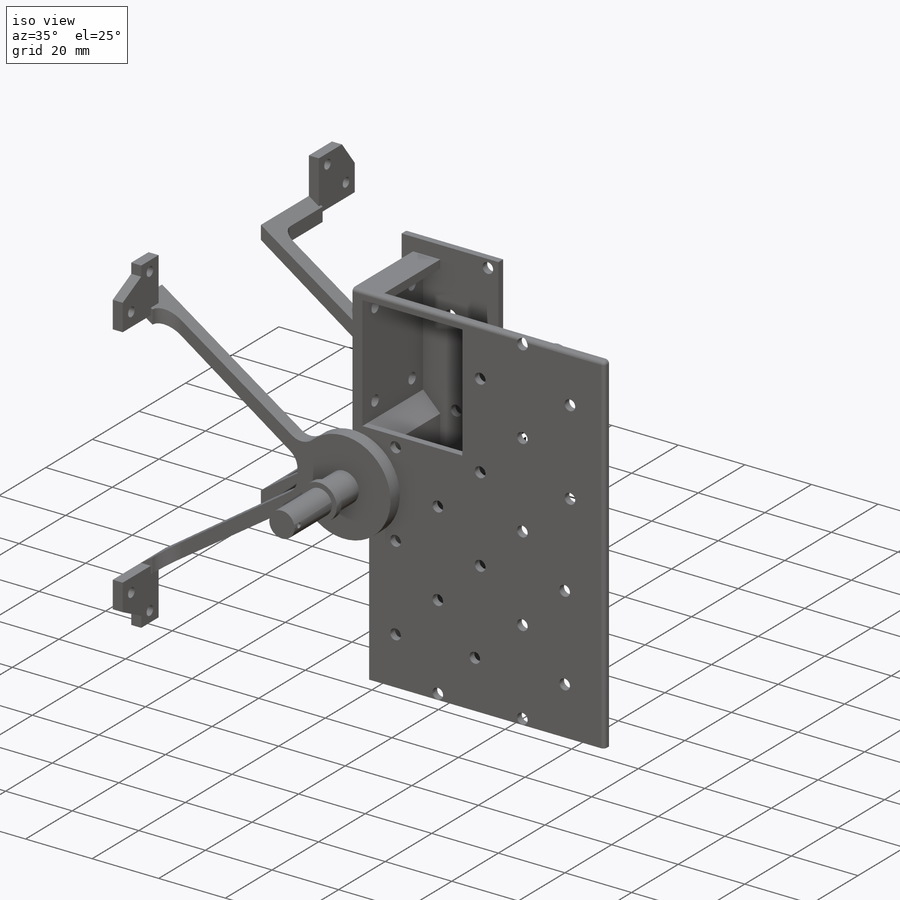
[diagram: iso view]
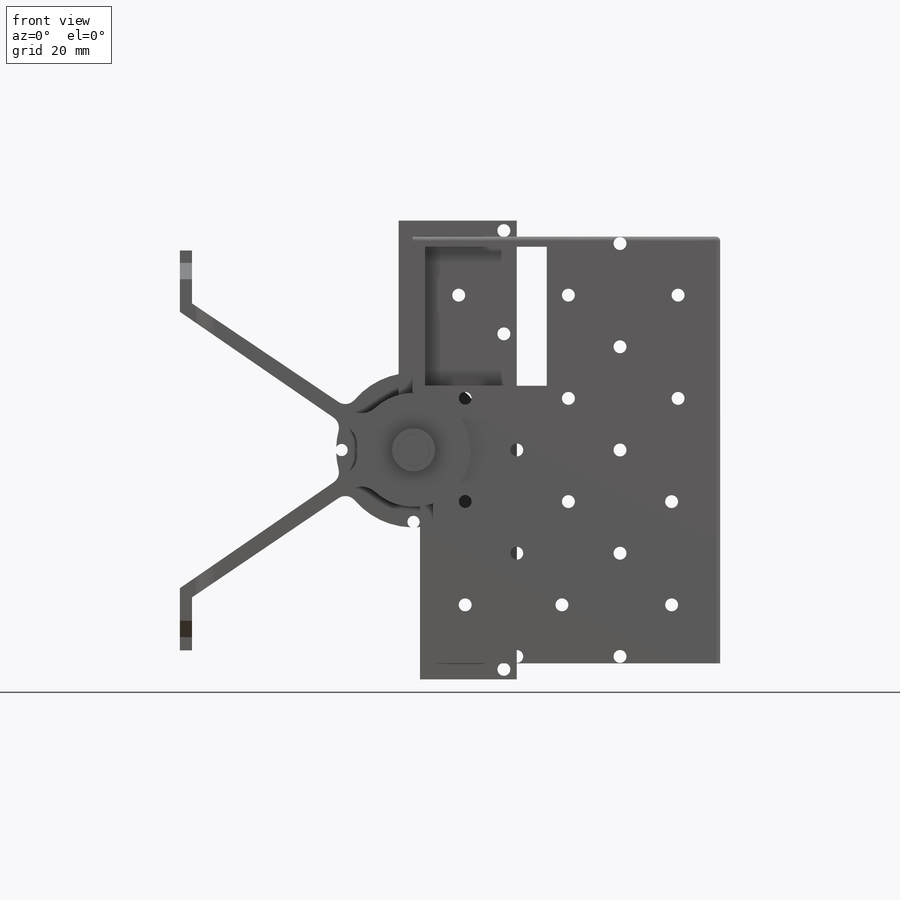
[diagram: front view]
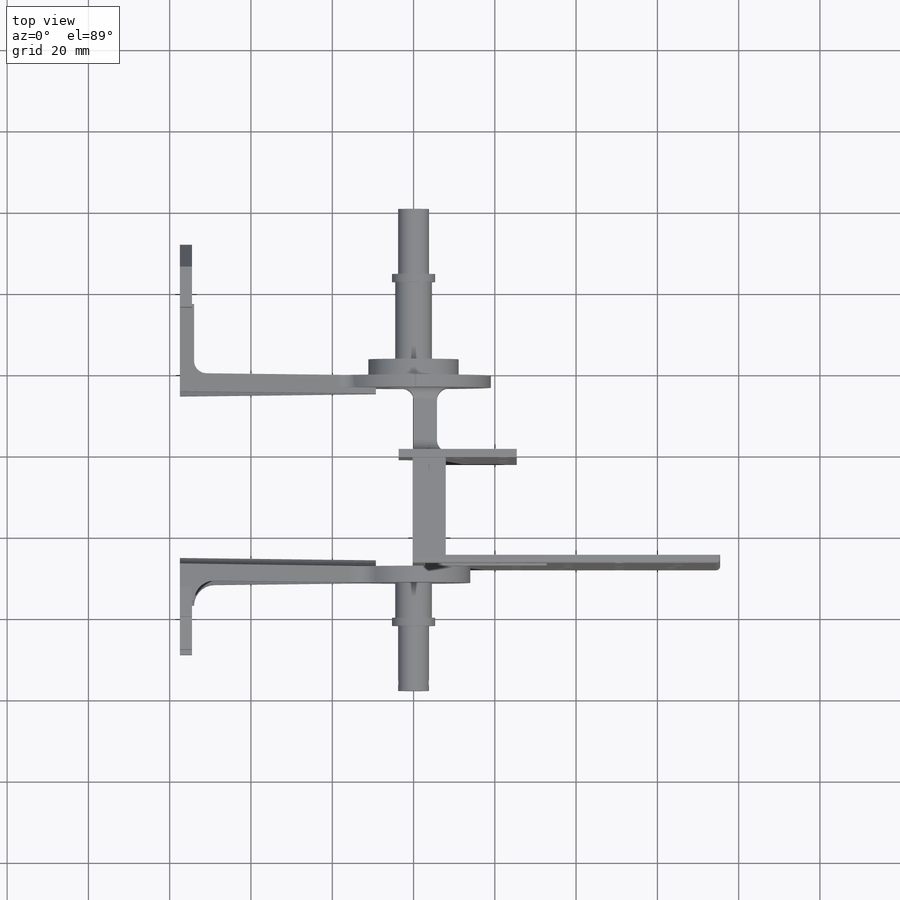
[diagram: top view]
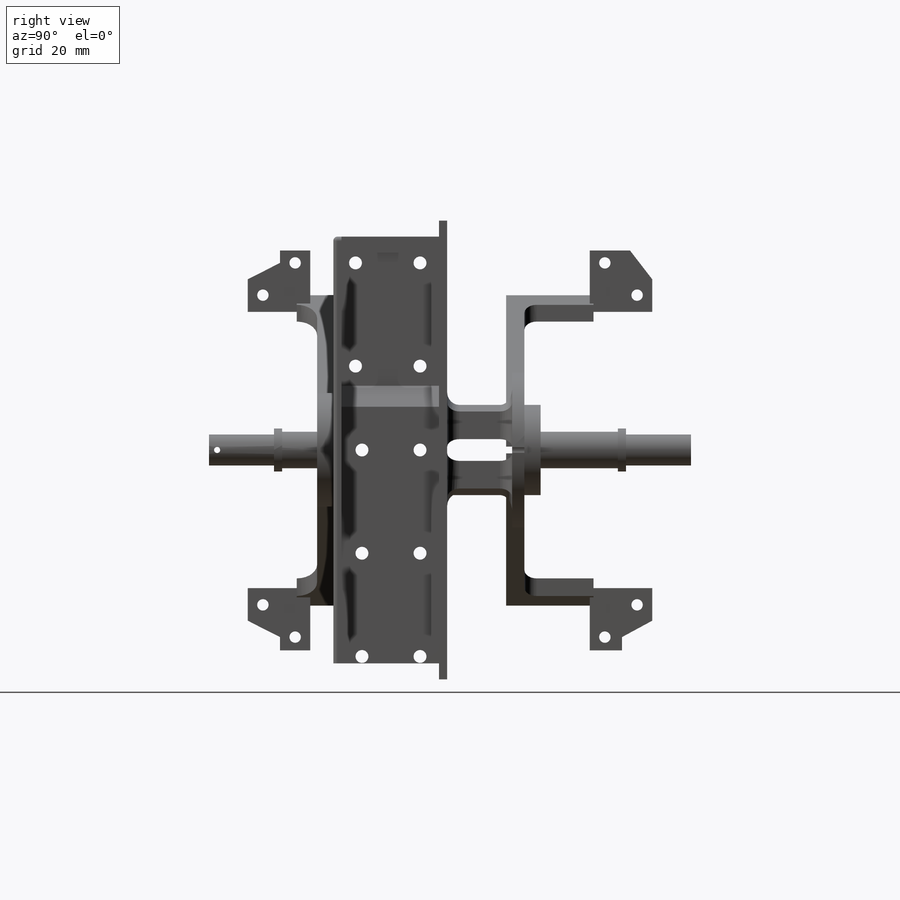
[diagram: right view]
SOLIDWORKS PART (.sldprt)
format: sldprt  version: not decoded by parser v0  size: 999,424 bytes
history: native  units: mm
features: sketch x26, extrude x22, fillet x8, cut_extrude x4, material x1 (+16 scaffold rows collapsed)
feature tree (77):
  scaffold x16  (default folders/planes/origin — collapsed)
  material  "Material <not specified>"
  sketch  "Sketch1"  dims[D1=19.05mm]
  extrude  "Extrude1"  Depth=16mm
  sketch  "Sketch2"  dims[D1=6.35mm]
  extrude  "Extrude2"  Depth=21mm
  sketch  "Sketch3"  dims[D1=11.0mm]
  extrude  "Extrude3"  Depth=4mm
  sketch  "Sketch4"
  extrude  "Extrude4"  Depth=3mm
  sketch  "Sketch5"  dims[D1=6.35mm]
  cut_extrude  "Extrude5"  [1 undecoded]
  sketch  "Sketch6"  dims[D1=57.5mm D2=34.0mm D3=34.0mm]
  extrude  "Extrude6"  Depth=3mm
  sketch  "Sketch7"  dims[D1=3.5mm D2=3.5mm]
  extrude  "Extrude7"  Depth=17mm
  sketch  "Sketch8"  dims[c1.D7=~1.239184mm c1.D9=~1.286483mm c1.D4=~1.824827mm c1.D6=2.625mm c1.D1=7.0mm c1.D2=4.4mm c1.D3=7.0mm c2.D4=7.0mm c2.D3=10.0mm c3.D4=7.0mm c3.D5=7.0mm c3.D6=3.5mm c3.D7=7.9375mm c3.D8=7.9375mm c4.D4=14.0mm c4.D9=14.0mm c4.D10=11.0mm c4.D11=92.075mm c4.D12=76.2mm c5.D4=46.0375mm c5.D2=92.075mm c5.D5=76.2mm c5.D6=13.2625mm c5.D9=3.725mm c5.D13=7.45mm c5.D14=~3.148987mm c5.D15=~4.526308mm c6.D14=~15.046594mm c6.D15=~3.148987mm c7.D14=3.725mm c7.D15=3.725mm c7.D16=3.725mm c7.D17=3.725mm c7.D3=3.725mm c7.D18=92.075mm c7.D19=76.2mm c7.D20=3.725mm]
  extrude  "Extrude8"  Depth=3mm
  sketch  "Sketch9"  dims[D1=0.0mm D2=5.7625mm]
  extrude  "Extrude9"  Depth=16mm
  sketch  "Sketch10"  dims[D1=50.0mm D2=50.0mm D3=2.5mm D4=2.5mm D5=65.0mm D6=2.5mm D7=5.0mm D8=37.0mm D9=3.0mm]
  extrude  "Extrude10"  Depth=26mm
  sketch  "Sketch11"  dims[D1=30.0mm]
  extrude  "Extrude11"  Depth=2mm
  sketch  "Sketch14"  dims[c1.D1=79.375mm c1.D2=3.675mm c1.D3=1.5875mm c1.D4=7.9375mm c1.D5=12.7mm c1.D6=11.1125mm c1.D7=6.35mm c1.D8=6.4375mm c2.D7=6.35mm c2.D8=6.4375mm c3.D7=~27.919193mm]
  extrude  "Extrude14"  Depth=2mm
  fillet  "Fillet4"  Radius=1mm
  fillet  "Fillet5"  Radius=1mm
  fillet  "Fillet8"  Radius=1mm
  fillet  "Fillet14"  Radius=1mm
  fillet  "Fillet18"  Radius=1mm
  sketch  "Sketch16"  dims[D1=13.0mm]
  extrude  "Extrude15"  Depth=4mm
  sketch  "Sketch17"  dims[D1=4.7625mm]
  extrude  "Extrude16"  Depth=10.6mm
  sketch  "Sketch18"  dims[D1=4.0mm]
  extrude  "Extrude17"  Depth=16mm
  sketch  "Sketch19"  dims[D1=6.35mm]
  extrude  "Extrude19"  Depth=2mm
  sketch  "Sketch20"  dims[D1=6.35mm]
  extrude  "Extrude20"  Depth=2mm
  sketch  "Sketch21"
  extrude  "Extrude21"  Depth=4mm
  sketch  "Sketch22"  dims[D1=4.0mm]
  extrude  "Extrude23"  Depth=5mm
  sketch  "Sketch23"  dims[c1.D2=1.5875mm c1.D3=1.5875mm c1.D1=2.0mm c2.D2=2.0mm]
  cut_extrude  "Extrude24"  [1 undecoded]
  sketch  "Sketch27"  dims[D1=2.0mm]
  extrude  "Extrude28"  Depth=1.5mm
  sketch  "Sketch28"
  extrude  "Extrude29"  Depth=1.5mm
  sketch  "Sketch29"
  sketch  "Sketch30"
  cut_extrude  "Extrude30"  [1 undecoded]
  cut_extrude  "Extrude31"  [1 undecoded]
  sketch  "Sketch31"
  extrude  "Extrude32"  [1 undecoded]
  fillet  "Fillet19"  Radius=3mm
  fillet  "Fillet20"  Radius=5mm
  fillet  "Fillet22"  Radius=3mm
  sketch  "Sketch32"
  extrude  "Extrude33"  Depth=1.5mm
decode coverage: 48 of 60 modeling features carry decoded parameters
note: ~ marks probable driven/reference dimensions
note: 5 parameter values undecoded
summary: no parameter record found for 5 features
note: suppression state not decoded; provenance and decode notes live in map.json
